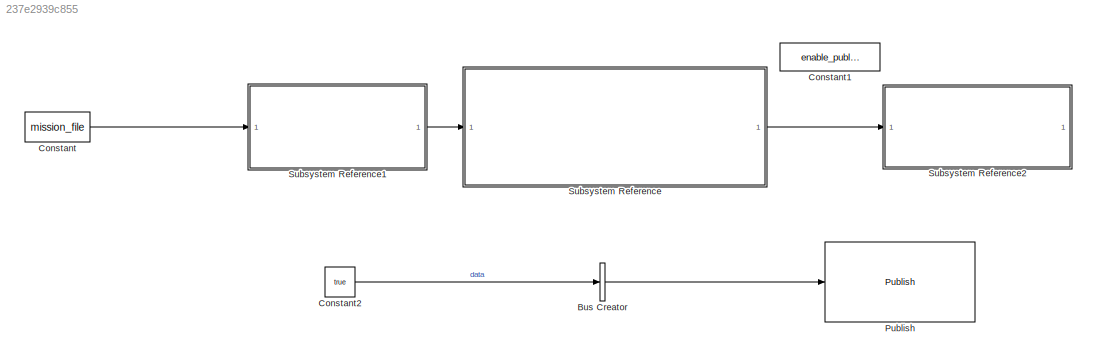
MODEL slx_237e2939c855
KIND model
CONFIG AbsTol = abs_tol
CONFIG EnableMultiTasking = off
CONFIG FixedStep = dt_sim
CONFIG MaxStep = auto
CONFIG MinStep = auto
CONFIG RelTol = rel_tol
CONFIG SampleTimeConstraint = Unconstrained
CONFIG SolverName = FixedStepAuto
CONFIG StartTime = 0.0
CONFIG StopTime = inf
BLOCK [BusCreator] Bus Creator
  DisplayOption = bar
  InheritFromInputs = on
  Inputs = 1
  NonVirtualBus = on
  OutDataTypeStr = Bus: SL_Bus_std_msgs_Bool
BLOCK [Constant] Constant
  Value = mission_file
BLOCK [Constant] Constant1
  Commented = on
  Value = enable_publish_flag
BLOCK [Constant] Constant2
  OutDataTypeStr = boolean
  Value = true
BLOCK [Reference] Publish  REF=ros2lib/Publish  (lib defined in slx_3c1549211f48)
  SourceBlock = ros2lib/Publish
  SourceType = ROS2 Publish
BLOCK [SubSystem] Subsystem Reference
  ReferencedSubsystem = controller
BLOCK [SubSystem] Subsystem Reference1
  ReferencedSubsystem = mission_file_parser
BLOCK [SubSystem] Subsystem Reference2
  ReferencedSubsystem = pwm_publisher
LINE Bus Creator:1 -> Publish:1
LINE Constant2:1 -> Bus Creator:1
LINE Constant:1 -> Subsystem Reference1:1
LINE Subsystem Reference1:1 -> Subsystem Reference:1
LINE Subsystem Reference:1 -> Subsystem Reference2:1
